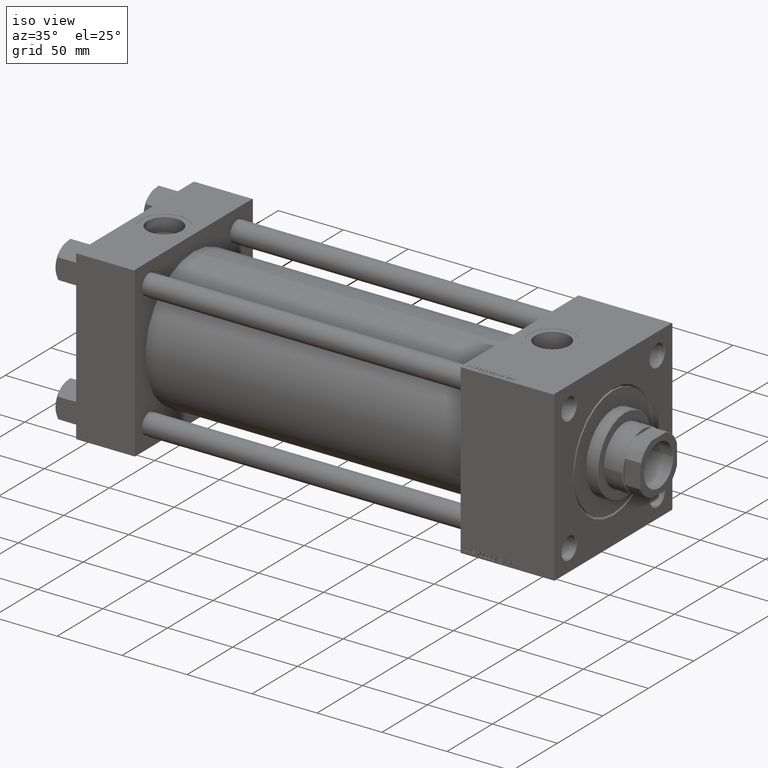
[diagram: clean part render]
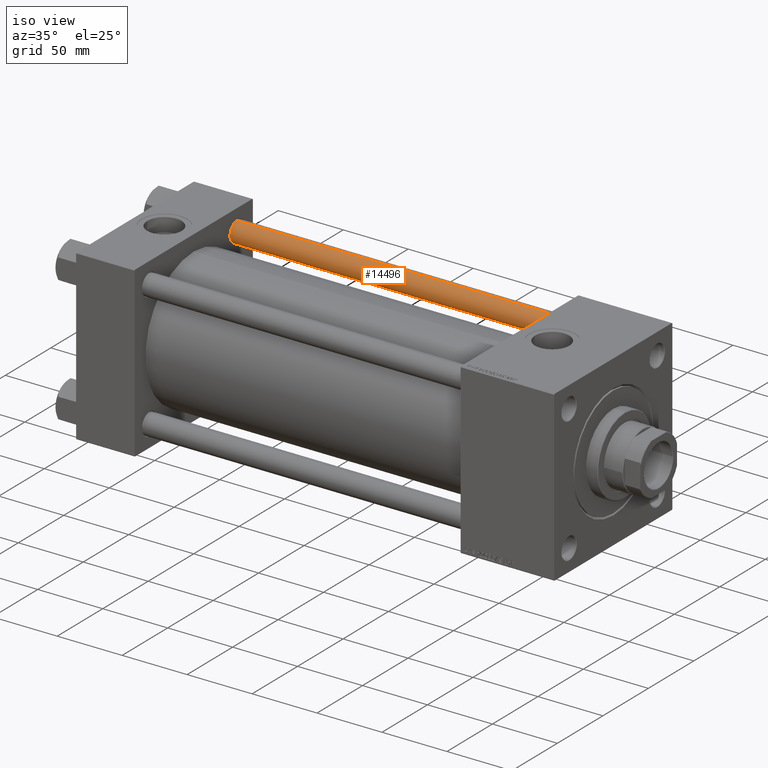
[diagram: same view with one face highlighted and labeled with its STEP entity id]
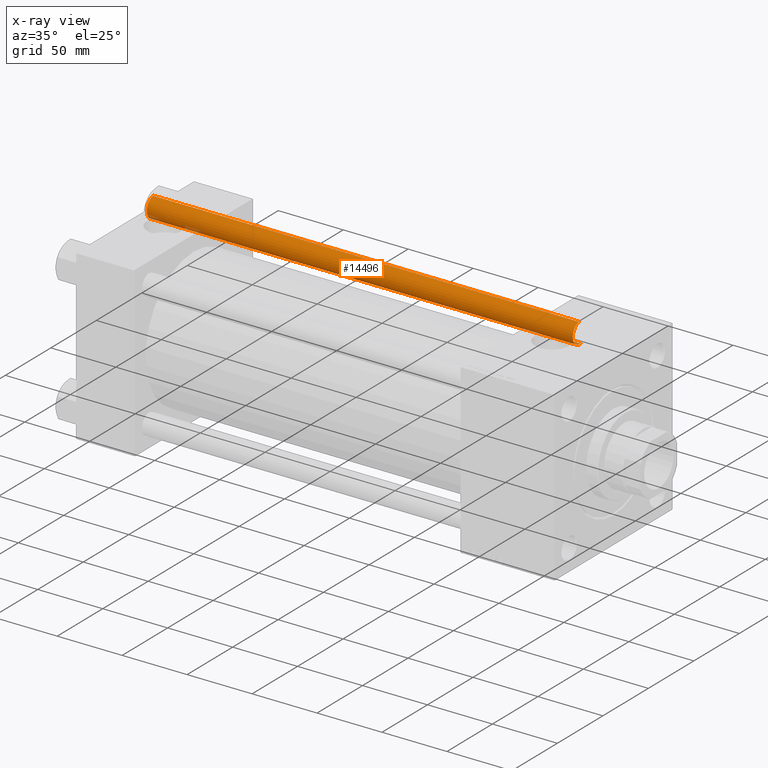
[diagram: x-ray of the same camera — body ghosted, the highlighted face saturated]
A machine part, iso view. The second image highlights one B-rep face of the part: STEP entity #14496.
The next image is the same camera in x-ray: the body ghosted, the highlighted face saturated — about 1% of this face is hidden behind the body in this view.
In plain terms, the highlighted cylindrical surface (edge-blend (fillet) strip) has radius 8 mm, axis along (-1, 0, 0).
Its self-contained STEP definition (entity closure, byte-faithful):
#5087 = DIRECTION ( 'NONE',  ( 1.000000000000000000, 0.000000000000000000, 0.000000000000000000 ) ) ;
#5956 = LINE ( 'NONE', #14160, #36041 ) ;
#7304 = AXIS2_PLACEMENT_3D ( 'NONE', #35829, #12779, #5087 ) ;
#7444 = VECTOR ( 'NONE', #16368, 1000.000000000000000 ) ;
#8930 = CARTESIAN_POINT ( 'NONE',  ( -8.000000000000000000, 0.000000000000000000, 329.0000000000000000 ) ) ;
#9748 = ORIENTED_EDGE ( 'NONE', *, *, #34423, .T. ) ;
#10873 = AXIS2_PLACEMENT_3D ( 'NONE', #14693, #42333, #34899 ) ;
#11016 = ORIENTED_EDGE ( 'NONE', *, *, #30398, .T. ) ;
#11764 = LINE ( 'NONE', #8930, #7444 ) ;
#12581 = DIRECTION ( 'NONE',  ( -0.000000000000000000, -0.000000000000000000, 1.000000000000000000 ) ) ;
#12779 = DIRECTION ( 'NONE',  ( 0.000000000000000000, 0.000000000000000000, -1.000000000000000000 ) ) ;
#14160 = CARTESIAN_POINT ( 'NONE',  ( 8.000000000000000000, 9.797174393178825657E-16, 329.0000000000000000 ) ) ;
#14496 = ADVANCED_FACE ( 'NONE', ( #33398 ), #18531, .T. ) ;
#14693 = CARTESIAN_POINT ( 'NONE',  ( 0.000000000000000000, 0.000000000000000000, 329.0000000000000000 ) ) ;
#14786 = ORIENTED_EDGE ( 'NONE', *, *, #42371, .T. ) ;
#16368 = DIRECTION ( 'NONE',  ( -0.000000000000000000, -0.000000000000000000, -1.000000000000000000 ) ) ;
#18531 = CYLINDRICAL_SURFACE ( 'NONE', #10873, 8.000000000000000000 ) ;
#20134 = EDGE_LOOP ( 'NONE', ( #28372, #9748, #14786, #11016 ) ) ;
#20258 = CIRCLE ( 'NONE', #36611, 8.000000000000000000 ) ;
#21722 = CARTESIAN_POINT ( 'NONE',  ( 8.000000000000000000, 9.797174393178825657E-16, 0.4999999999998894218 ) ) ;
#24490 = CIRCLE ( 'NONE', #7304, 8.000000000000000000 ) ;
#28372 = ORIENTED_EDGE ( 'NONE', *, *, #41280, .F. ) ;
#28922 = CARTESIAN_POINT ( 'NONE',  ( 8.000000000000000000, 9.797174393178825657E-16, 328.5000000000000000 ) ) ;
#30398 = EDGE_CURVE ( 'NONE', #49402, #34552, #20258, .T. ) ;
#31513 = VERTEX_POINT ( 'NONE', #28922 ) ;
#32687 = CARTESIAN_POINT ( 'NONE',  ( -8.000000000000000000, 0.000000000000000000, 328.5000000000000000 ) ) ;
#33398 = FACE_OUTER_BOUND ( 'NONE', #20134, .T. ) ;
#34423 = EDGE_CURVE ( 'NONE', #31513, #45241, #24490, .T. ) ;
#34552 = VERTEX_POINT ( 'NONE', #21722 ) ;
#34899 = DIRECTION ( 'NONE',  ( -1.000000000000000000, 0.000000000000000000, 0.000000000000000000 ) ) ;
#35829 = CARTESIAN_POINT ( 'NONE',  ( 0.000000000000000000, 0.000000000000000000, 328.5000000000000000 ) ) ;
#36041 = VECTOR ( 'NONE', #36959, 1000.000000000000000 ) ;
#36611 = AXIS2_PLACEMENT_3D ( 'NONE', #47678, #12581, #43823 ) ;
#36959 = DIRECTION ( 'NONE',  ( -0.000000000000000000, -0.000000000000000000, -1.000000000000000000 ) ) ;
#38124 = CARTESIAN_POINT ( 'NONE',  ( -8.000000000000000000, 0.000000000000000000, 0.4999999999998894218 ) ) ;
#41280 = EDGE_CURVE ( 'NONE', #31513, #34552, #5956, .T. ) ;
#42333 = DIRECTION ( 'NONE',  ( -0.000000000000000000, -0.000000000000000000, -1.000000000000000000 ) ) ;
#42371 = EDGE_CURVE ( 'NONE', #45241, #49402, #11764, .T. ) ;
#43823 = DIRECTION ( 'NONE',  ( 1.000000000000000000, 0.000000000000000000, 0.000000000000000000 ) ) ;
#45241 = VERTEX_POINT ( 'NONE', #32687 ) ;
#47678 = CARTESIAN_POINT ( 'NONE',  ( 0.000000000000000000, 0.000000000000000000, 0.4999999999998894218 ) ) ;
#49402 = VERTEX_POINT ( 'NONE', #38124 ) ;